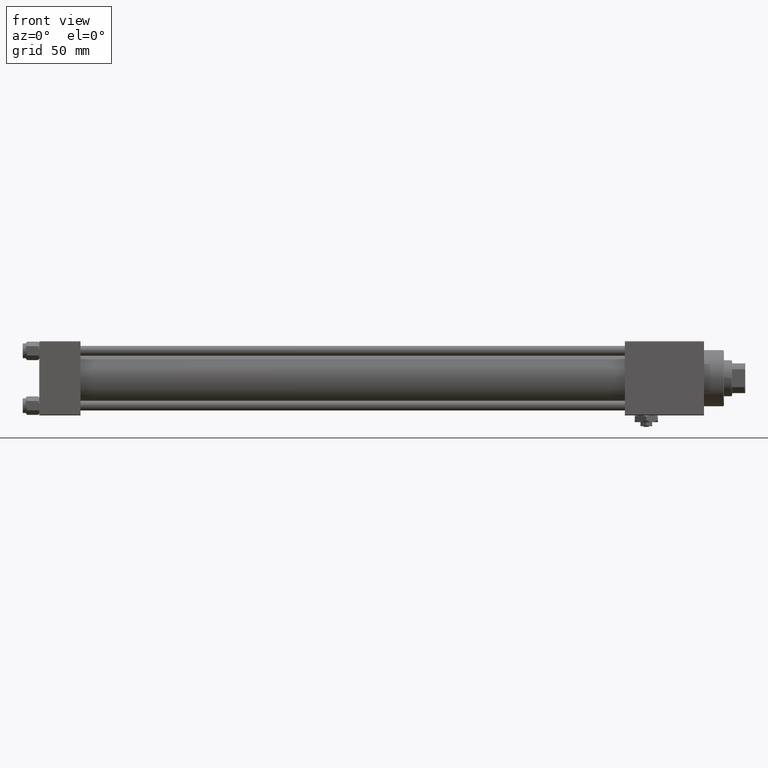
[diagram: clean part render]
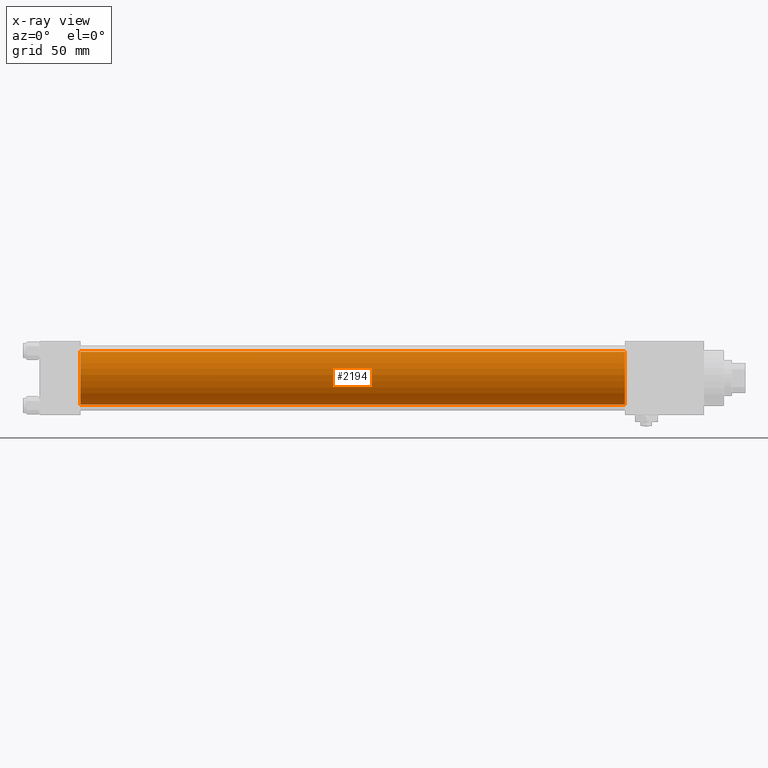
[diagram: x-ray — body ghosted, one internal face saturated and labeled with its STEP entity id]
A machine part, front view, then the same camera in x-ray: the body is ghosted and one INTERNAL B-rep face — a face not visible from any outside direction — is saturated and labeled: STEP entity #2194.
In plain terms, the highlighted cylindrical surface (edge-blend (fillet) strip) has radius 16 mm, axis along (-1, -0, -0).
Its self-contained STEP definition (entity closure, byte-faithful):
#2126 = LINE ( 'NONE', #18135, #20577 ) ;
#2194 = ADVANCED_FACE ( 'NONE', ( #47395 ), #39280, .F. ) ;
#2630 = EDGE_CURVE ( 'NONE', #41928, #8349, #44747, .T. ) ;
#2853 = DIRECTION ( 'NONE',  ( 0.000000000000000000, 0.000000000000000000, -1.000000000000000000 ) ) ;
#4478 = ORIENTED_EDGE ( 'NONE', *, *, #44561, .T. ) ;
#5389 = AXIS2_PLACEMENT_3D ( 'NONE', #6309, #25998, #42749 ) ;
#5599 = EDGE_CURVE ( 'NONE', #31480, #41928, #2126, .T. ) ;
#6309 = CARTESIAN_POINT ( 'NONE',  ( 25.00000000000000000, -2.602085213965210642E-15, 0.000000000000000000 ) ) ;
#6906 = ORIENTED_EDGE ( 'NONE', *, *, #51768, .T. ) ;
#6933 = CARTESIAN_POINT ( 'NONE',  ( 355.0000000000000568, -6.426503353294456087E-16, -16.00000000000000000 ) ) ;
#7276 = DIRECTION ( 'NONE',  ( 0.000000000000000000, 0.000000000000000000, 1.000000000000000000 ) ) ;
#8006 = VECTOR ( 'NONE', #26873, 1000.000000000000000 ) ;
#8349 = VERTEX_POINT ( 'NONE', #40894 ) ;
#10696 = CARTESIAN_POINT ( 'NONE',  ( 25.00000000000000000, -2.602085213965210642E-15, 16.00000000000000000 ) ) ;
#10733 = DIRECTION ( 'NONE',  ( 1.000000000000000000, 0.000000000000000000, 0.000000000000000000 ) ) ;
#13259 = CARTESIAN_POINT ( 'NONE',  ( 355.0000000000000568, -2.602085213965210642E-15, 16.00000000000000000 ) ) ;
#13666 = VERTEX_POINT ( 'NONE', #26859 ) ;
#18135 = CARTESIAN_POINT ( 'NONE',  ( 355.0000000000000568, -2.602085213965210642E-15, 16.00000000000000000 ) ) ;
#20577 = VECTOR ( 'NONE', #26536, 1000.000000000000000 ) ;
#22281 = CARTESIAN_POINT ( 'NONE',  ( 355.0000000000000568, -2.602085213965210642E-15, 0.000000000000000000 ) ) ;
#23273 = DIRECTION ( 'NONE',  ( -1.000000000000000000, -0.000000000000000000, -0.000000000000000000 ) ) ;
#25998 = DIRECTION ( 'NONE',  ( 1.000000000000000000, 0.000000000000000000, 0.000000000000000000 ) ) ;
#26536 = DIRECTION ( 'NONE',  ( -1.000000000000000000, -0.000000000000000000, -0.000000000000000000 ) ) ;
#26859 = CARTESIAN_POINT ( 'NONE',  ( 355.0000000000000568, -6.426503353294456087E-16, -16.00000000000000000 ) ) ;
#26873 = DIRECTION ( 'NONE',  ( -1.000000000000000000, -0.000000000000000000, -0.000000000000000000 ) ) ;
#27157 = AXIS2_PLACEMENT_3D ( 'NONE', #27210, #23273, #7276 ) ;
#27210 = CARTESIAN_POINT ( 'NONE',  ( 355.0000000000000568, -2.602085213965210642E-15, 0.000000000000000000 ) ) ;
#31480 = VERTEX_POINT ( 'NONE', #13259 ) ;
#37092 = CIRCLE ( 'NONE', #40439, 16.00000000000000000 ) ;
#38683 = LINE ( 'NONE', #6933, #8006 ) ;
#39280 = CYLINDRICAL_SURFACE ( 'NONE', #27157, 16.00000000000000000 ) ;
#40439 = AXIS2_PLACEMENT_3D ( 'NONE', #22281, #10733, #2853 ) ;
#40894 = CARTESIAN_POINT ( 'NONE',  ( 25.00000000000000000, -6.426503353294456087E-16, -16.00000000000000000 ) ) ;
#41928 = VERTEX_POINT ( 'NONE', #10696 ) ;
#42749 = DIRECTION ( 'NONE',  ( 0.000000000000000000, 0.000000000000000000, -1.000000000000000000 ) ) ;
#44561 = EDGE_CURVE ( 'NONE', #31480, #13666, #37092, .T. ) ;
#44747 = CIRCLE ( 'NONE', #5389, 16.00000000000000000 ) ;
#45289 = ORIENTED_EDGE ( 'NONE', *, *, #5599, .F. ) ;
#47395 = FACE_OUTER_BOUND ( 'NONE', #51018, .T. ) ;
#49989 = ORIENTED_EDGE ( 'NONE', *, *, #2630, .F. ) ;
#51018 = EDGE_LOOP ( 'NONE', ( #4478, #6906, #49989, #45289 ) ) ;
#51768 = EDGE_CURVE ( 'NONE', #13666, #8349, #38683, .T. ) ;